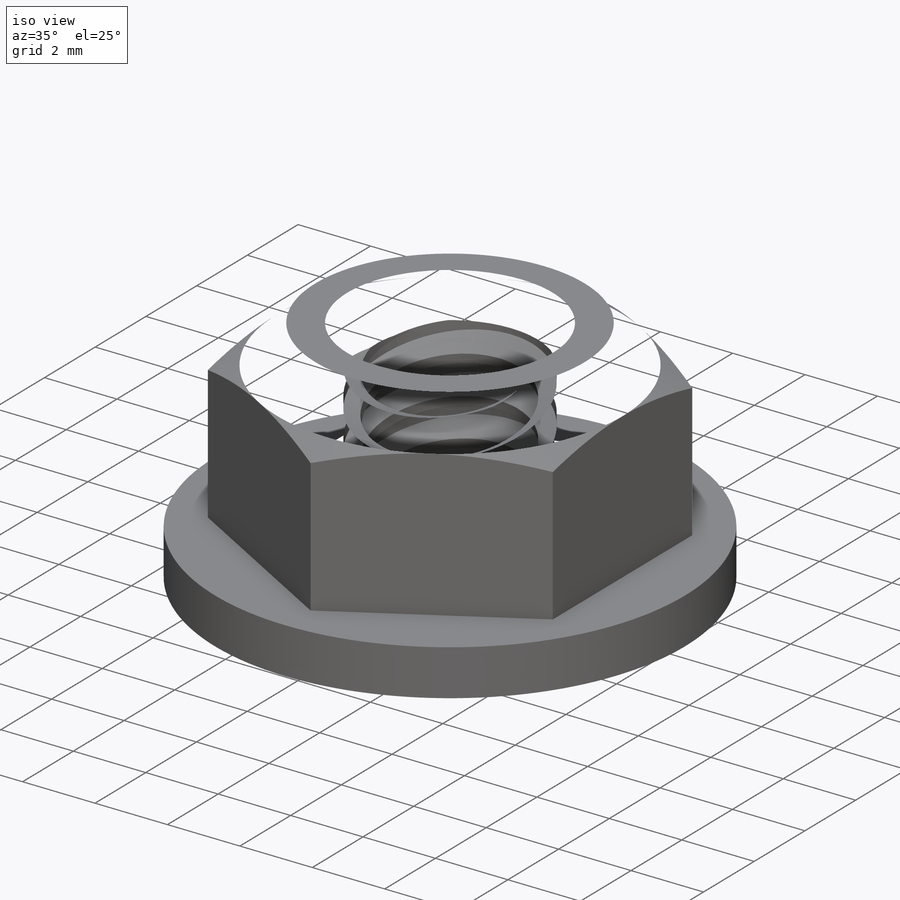
[diagram: iso view]
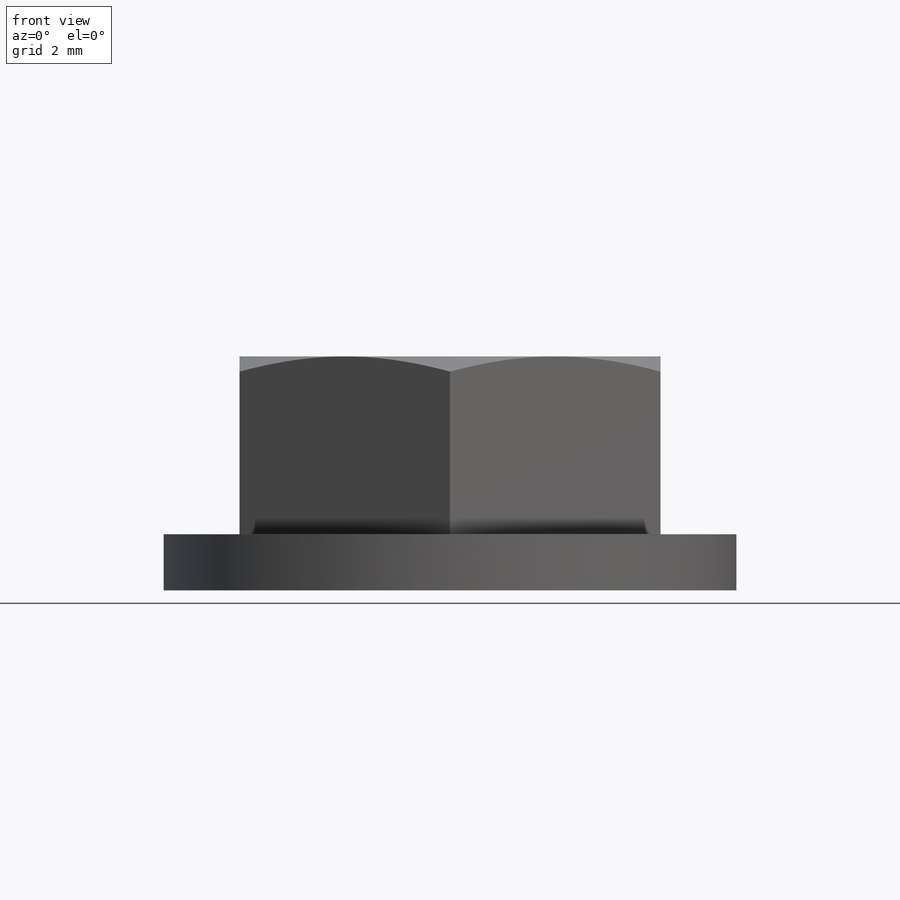
[diagram: front view]
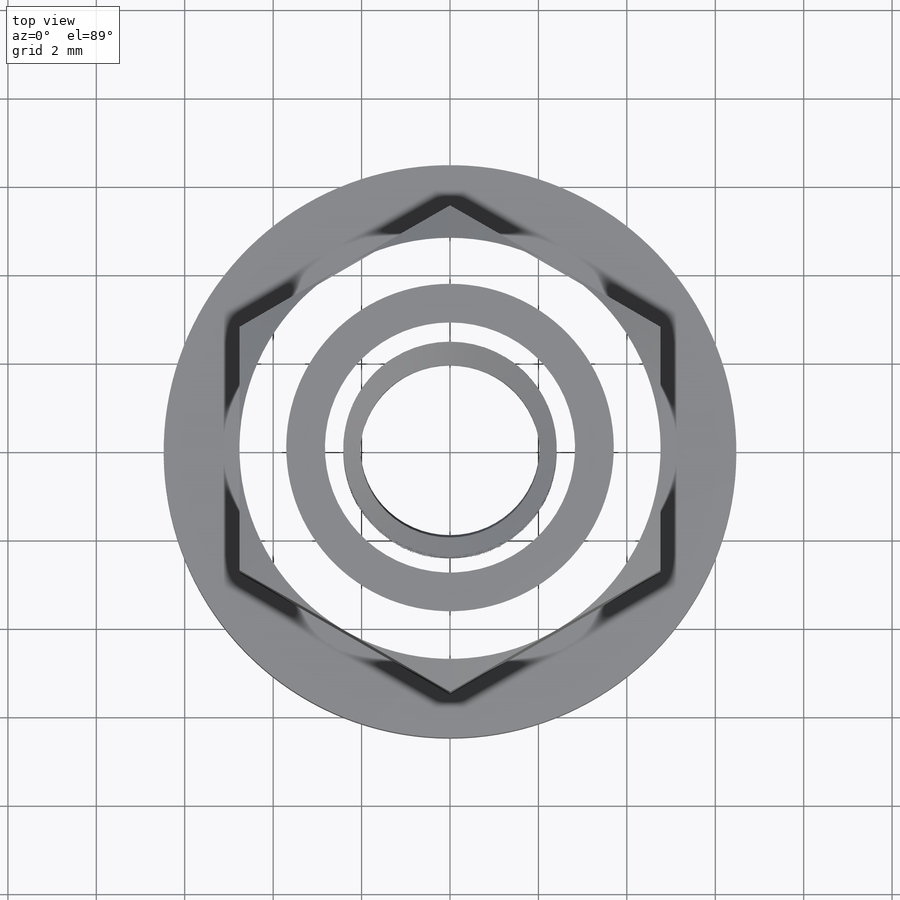
[diagram: top view]
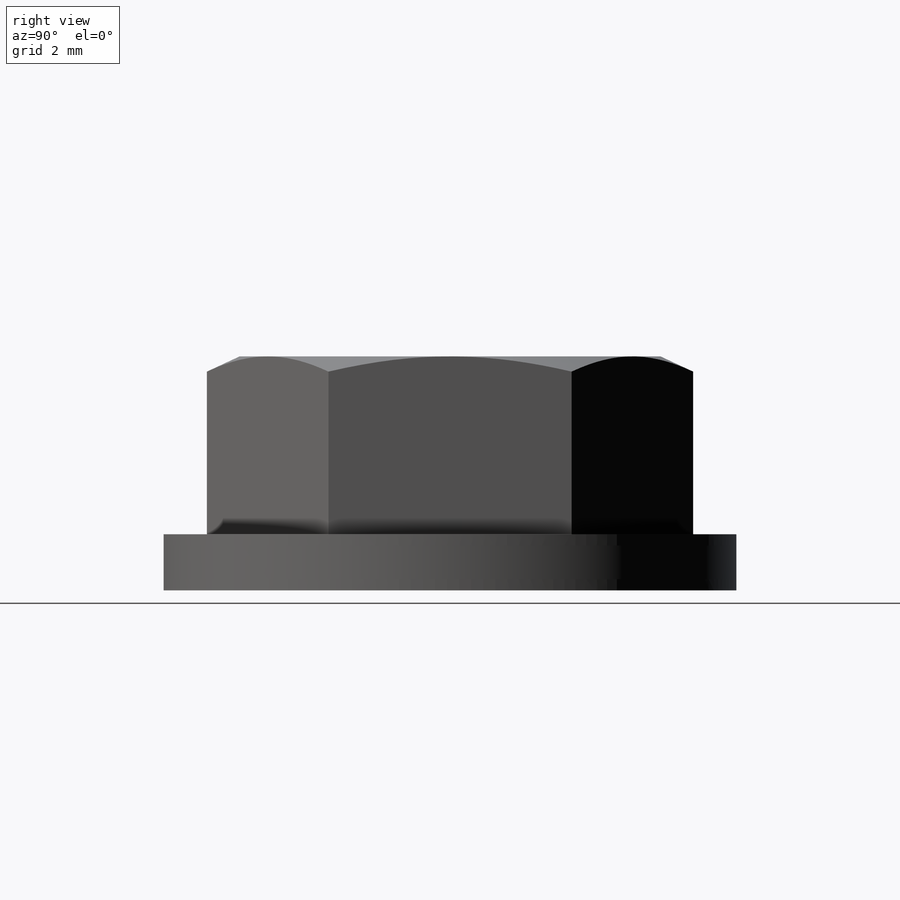
[diagram: right view]
SOLIDWORKS PART (.sldprt)
format: sldprt  version: not decoded by parser v0  size: 823,808 bytes
history: native  units: mm
features: sketch x8, cut_revolve x4, revolve x3, material x1, extrude x1, pattern_linear x1, boolean_combine x1 (+14 scaffold rows collapsed)
feature tree (33):
  scaffold x14  (default folders/planes/origin — collapsed)
  material  "Material <not specified>"
  sketch  "Sketch1"  dims[Hex Flats=9.525mm]
  extrude  "Extrude1"  Depth=6.35mm Height=6.35mm
  sketch  "Sketch8"  dims[Flange Height=1.27mm Flange Dia=12.954mm]
  revolve  "Revolve3"  Angle=360deg
  sketch  "Sketch2"  dims[Thread Dia=4.826mm]
  revolve  "Revolve1"  Angle=360deg
  sketch  "Sketch3"  dims[c1.D1=~0.132292mm c1.D2=~0.264583mm c1.Thread Pitch=~1.058333mm c1.D4=~10.975183mm c2.D4=60.0deg c2.D5=~1.058333mm]
  cut_revolve  "Cut-Revolve1"  Angle=360deg
  pattern_linear  "LPattern1"  Count1=6 Count2=2 Spacing1=1.058333mm Spacing2=1.058333mm
  sketch  "Sketch4"  dims[c1.D1=~7.974547mm c2.D1=25.0deg]
  cut_revolve  "Cut-Revolve2"  Angle=360deg
  boolean_combine  "Combine1"
  sketch  "Sketch5"  dims[c1.D1=~25.750443mm c2.D1=25.0deg c2.D2=1.27mm c2.D3=~17.859375mm c2.D4=~1.058333mm c3.D1=1.27mm c3.D2=~7.968993mm c4.D2=115.0deg c4.D3=6.35mm]
  cut_revolve  "Cut-Revolve3"  Angle=360deg
  sketch  "Sketch6"  dims[D1=0.1524mm]
  cut_revolve  "Cut-Revolve4"  Angle=360deg
  sketch  "Sketch7"  dims[D1=0.0762mm]
  revolve  "Revolve2"  Angle=360deg
decode coverage: 17 of 18 modeling features carry decoded parameters
note: ~ marks probable driven/reference dimensions
note: suppression state not decoded; provenance and decode notes live in map.json
